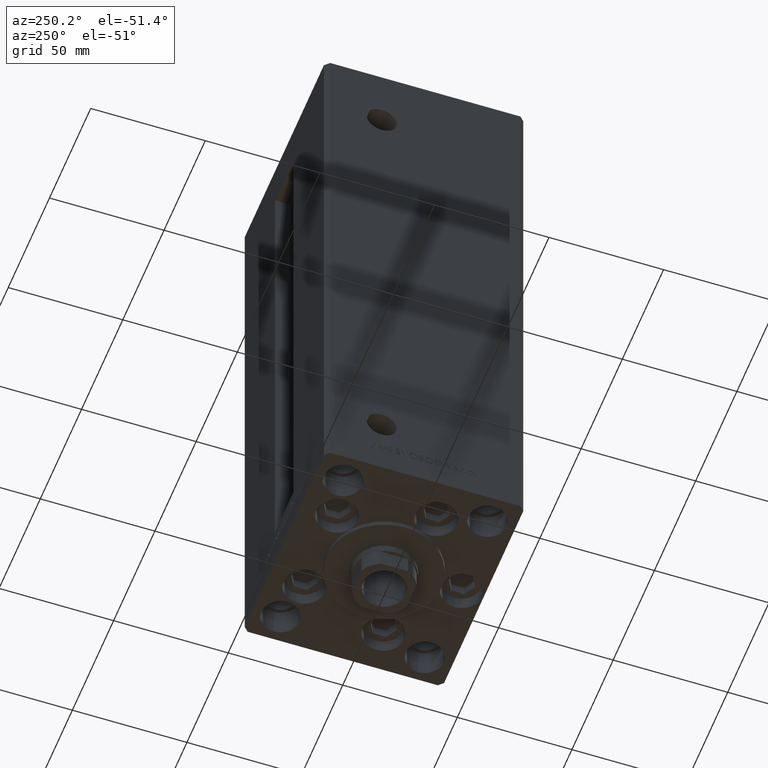
[diagram: clean part render]
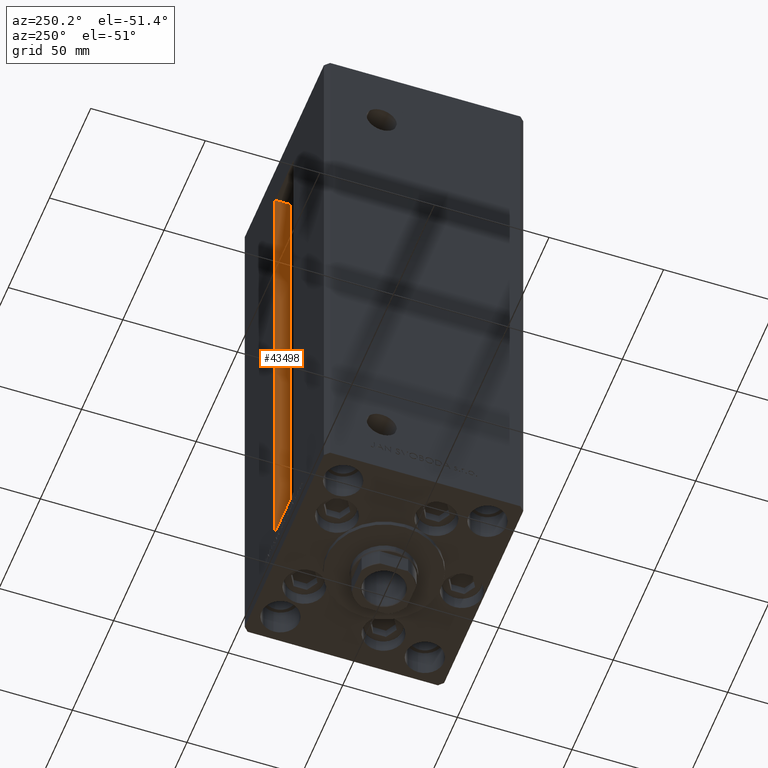
[diagram: same view with one face highlighted and labeled with its STEP entity id]
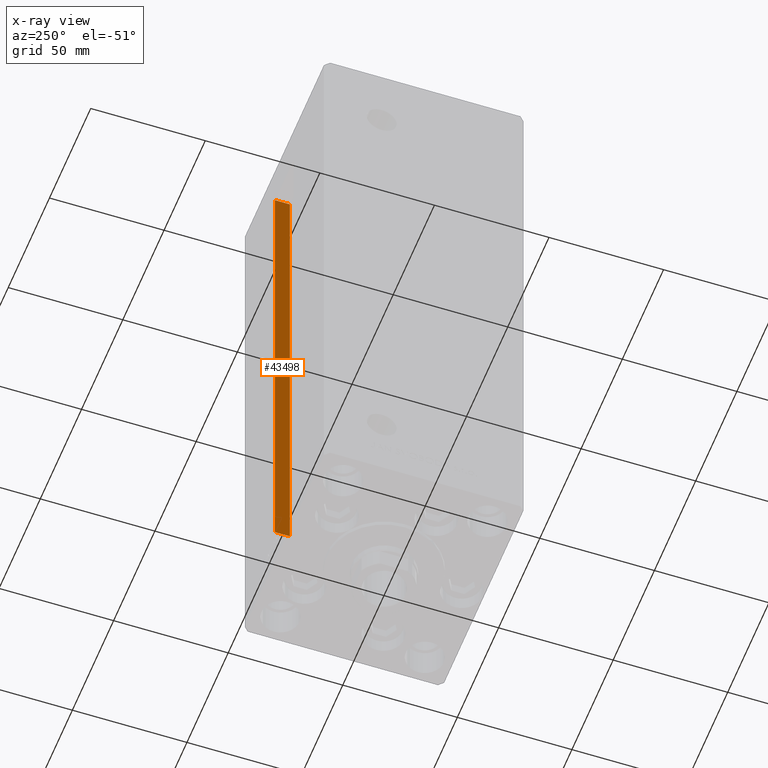
[diagram: x-ray of the same camera — body ghosted, the highlighted face saturated]
A machine part, auxiliary view. The second image highlights one B-rep face of the part: STEP entity #43498.
The next image is the same camera in x-ray: the body ghosted, the highlighted face saturated — about 0% of this face is hidden behind the body in this view.
In plain terms, the highlighted planar face has unit normal (1, 0, 0).
Its self-contained STEP definition (entity closure, byte-faithful):
#239 = EDGE_CURVE ( 'NONE', #18963, #13197, #8910, .T. ) ;
#567 = EDGE_CURVE ( 'NONE', #18963, #37540, #31637, .T. ) ;
#3092 = ORIENTED_EDGE ( 'NONE', *, *, #567, .F. ) ;
#4806 = CARTESIAN_POINT ( 'NONE',  ( 11.24999999999999822, 36.99999999999999289, 0.000000000000000000 ) ) ;
#5768 = EDGE_CURVE ( 'NONE', #37540, #24183, #45667, .T. ) ;
#6464 = EDGE_CURVE ( 'NONE', #24183, #13197, #40630, .T. ) ;
#7209 = VECTOR ( 'NONE', #39797, 1000.000000000000000 ) ;
#8210 = VECTOR ( 'NONE', #29235, 1000.000000000000000 ) ;
#8910 = LINE ( 'NONE', #24342, #7209 ) ;
#10961 = CARTESIAN_POINT ( 'NONE',  ( 11.24999999999999822, 43.50000000000000000, 0.000000000000000000 ) ) ;
#13197 = VERTEX_POINT ( 'NONE', #45843 ) ;
#14030 = CARTESIAN_POINT ( 'NONE',  ( 11.24999999999999112, 43.50000000000000000, 218.5000000000000000 ) ) ;
#15146 = ORIENTED_EDGE ( 'NONE', *, *, #5768, .F. ) ;
#15936 = DIRECTION ( 'NONE',  ( 0.000000000000000000, 1.000000000000000000, 0.000000000000000000 ) ) ;
#18963 = VERTEX_POINT ( 'NONE', #43517 ) ;
#19968 = CARTESIAN_POINT ( 'NONE',  ( 11.24999999999999822, 36.99999999999999289, 0.000000000000000000 ) ) ;
#20063 = FACE_OUTER_BOUND ( 'NONE', #39483, .T. ) ;
#23022 = PLANE ( 'NONE',  #47362 ) ;
#23522 = DIRECTION ( 'NONE',  ( 0.000000000000000000, 0.000000000000000000, -1.000000000000000000 ) ) ;
#24183 = VERTEX_POINT ( 'NONE', #14030 ) ;
#24342 = CARTESIAN_POINT ( 'NONE',  ( 11.24999999999999822, 36.99999999999999289, 0.000000000000000000 ) ) ;
#29235 = DIRECTION ( 'NONE',  ( -0.000000000000000000, -1.000000000000000000, 0.000000000000000000 ) ) ;
#30074 = ORIENTED_EDGE ( 'NONE', *, *, #6464, .F. ) ;
#31637 = LINE ( 'NONE', #4806, #45209 ) ;
#34934 = DIRECTION ( 'NONE',  ( 1.000000000000000000, -0.000000000000000000, 0.000000000000000000 ) ) ;
#37540 = VERTEX_POINT ( 'NONE', #44373 ) ;
#38101 = VECTOR ( 'NONE', #49717, 1000.000000000000000 ) ;
#39483 = EDGE_LOOP ( 'NONE', ( #15146, #3092, #43720, #30074 ) ) ;
#39797 = DIRECTION ( 'NONE',  ( -0.000000000000000000, -0.000000000000000000, 1.000000000000000000 ) ) ;
#40630 = LINE ( 'NONE', #41373, #8210 ) ;
#41373 = CARTESIAN_POINT ( 'NONE',  ( 11.24999999999999822, 0.000000000000000000, 218.5000000000000000 ) ) ;
#43498 = ADVANCED_FACE ( 'NONE', ( #20063 ), #23022, .F. ) ;
#43517 = CARTESIAN_POINT ( 'NONE',  ( 11.24999999999999822, 36.99999999999999289, 0.000000000000000000 ) ) ;
#43720 = ORIENTED_EDGE ( 'NONE', *, *, #239, .T. ) ;
#44373 = CARTESIAN_POINT ( 'NONE',  ( 11.24999999999999822, 43.50000000000000000, 0.000000000000000000 ) ) ;
#45209 = VECTOR ( 'NONE', #15936, 1000.000000000000000 ) ;
#45667 = LINE ( 'NONE', #10961, #38101 ) ;
#45843 = CARTESIAN_POINT ( 'NONE',  ( 11.24999999999999822, 36.99999999999999289, 218.5000000000000000 ) ) ;
#47362 = AXIS2_PLACEMENT_3D ( 'NONE', #19968, #34934, #23522 ) ;
#49717 = DIRECTION ( 'NONE',  ( -0.000000000000000000, -0.000000000000000000, 1.000000000000000000 ) ) ;